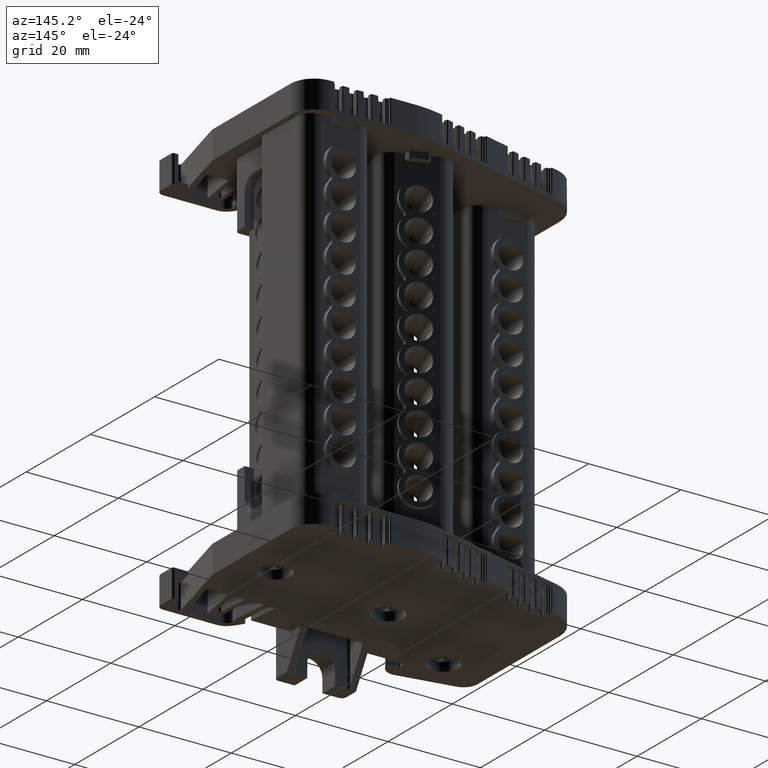
[diagram: clean part render]
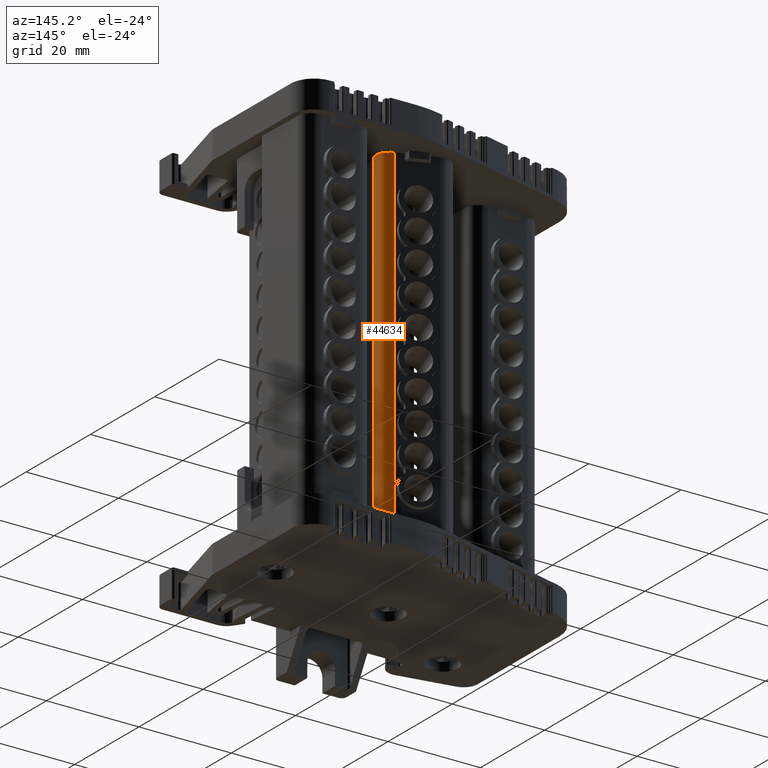
[diagram: same view with one face highlighted and labeled with its STEP entity id]
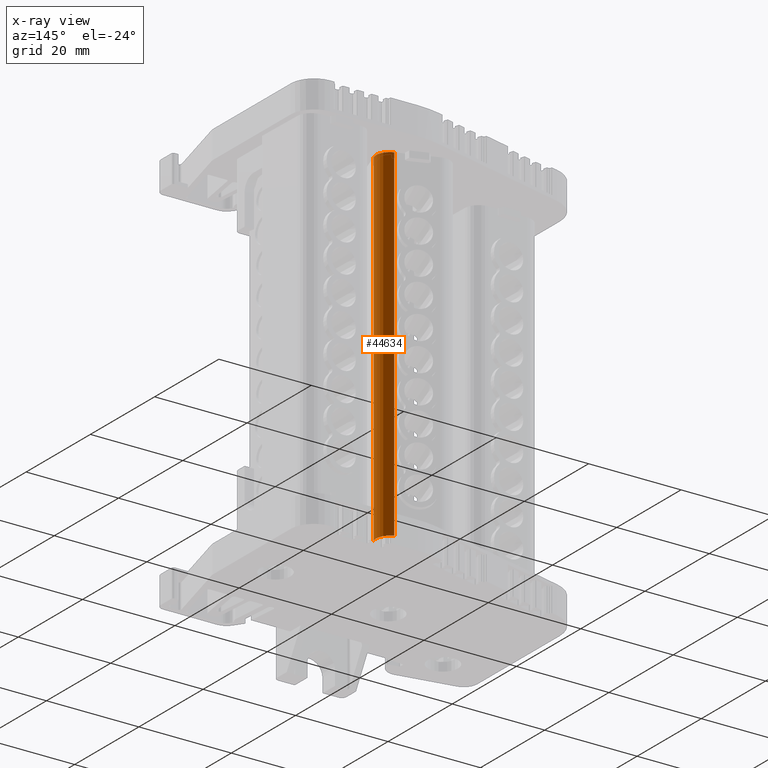
[diagram: x-ray of the same camera — body ghosted, the highlighted face saturated]
A machine part, auxiliary view. The second image highlights one B-rep face of the part: STEP entity #44634.
The next image is the same camera in x-ray: the body ghosted, the highlighted face saturated — about 0% of this face is hidden behind the body in this view.
In plain terms, the highlighted cylindrical surface (edge-blend (fillet) strip) has radius 3.0101 mm, axis along (-0, 0, -1).
Its self-contained STEP definition (entity closure, byte-faithful):
#5940 = CIRCLE ( 'NONE', #5973, 3.010083036540351000 ) ;
#5973 = AXIS2_PLACEMENT_3D ( 'NONE', #15821, #15895, #15834 ) ;
#8440 = EDGE_LOOP ( 'NONE', ( #65438, #65363, #65323, #65385 ) ) ;
#13431 = CIRCLE ( 'NONE', #13561, 3.010083036540351000 ) ;
#13561 = AXIS2_PLACEMENT_3D ( 'NONE', #16051, #16104, #16126 ) ;
#13652 = VECTOR ( 'NONE', #16430, 1000.000000000000000 ) ;
#14055 = VECTOR ( 'NONE', #16854, 1000.000000000000000 ) ;
#15821 = CARTESIAN_POINT ( 'NONE',  ( -290.4868818521011300, 223.0887043591140800, 100.3119239351455100 ) ) ;
#15834 = DIRECTION ( 'NONE',  ( 0.0000000000000000000, 1.000000000000000000, 9.220867091935734500E-015 ) ) ;
#15895 = DIRECTION ( 'NONE',  ( -8.166714072959356300E-015, 9.405853051772095400E-015, -1.000000000000000000 ) ) ;
#16051 = CARTESIAN_POINT ( 'NONE',  ( -290.4868818521017600, 223.0887043591147600, 25.71293318655235200 ) ) ;
#16104 = DIRECTION ( 'NONE',  ( 8.166714072959356300E-015, -9.405853051772095400E-015, 1.000000000000000000 ) ) ;
#16126 = DIRECTION ( 'NONE',  ( 0.0000000000000000000, 1.000000000000000000, 9.220867091935734500E-015 ) ) ;
#16430 = DIRECTION ( 'NONE',  ( 2.067656873799533900E-015, 5.680858257042341300E-015, -1.000000000000000000 ) ) ;
#16454 = LINE ( 'NONE', #16459, #13652 ) ;
#16459 = CARTESIAN_POINT ( 'NONE',  ( -289.4573756505815300, 225.9172582065593800, 176.6548958728828000 ) ) ;
#16854 = DIRECTION ( 'NONE',  ( -8.166714072959356300E-015, 9.405853051772095400E-015, -1.000000000000000000 ) ) ;
#16878 = LINE ( 'NONE', #16896, #14055 ) ;
#16896 = CARTESIAN_POINT ( 'NONE',  ( -287.6407914464475700, 222.1087200277498300, 176.6548958728827800 ) ) ;
#27792 = AXIS2_PLACEMENT_3D ( 'NONE', #73692, #73724, #73715 ) ;
#40244 = EDGE_CURVE ( 'NONE', #64753, #64739, #5940, .T. ) ;
#40353 = EDGE_CURVE ( 'NONE', #64747, #64802, #13431, .T. ) ;
#40408 = EDGE_CURVE ( 'NONE', #64753, #64802, #16454, .T. ) ;
#40481 = EDGE_CURVE ( 'NONE', #64739, #64747, #16878, .T. ) ;
#44634 = ADVANCED_FACE ( 'NONE', ( #73668 ), #73687, .T. ) ;
#64739 = VERTEX_POINT ( 'NONE', #110575 ) ;
#64747 = VERTEX_POINT ( 'NONE', #110555 ) ;
#64753 = VERTEX_POINT ( 'NONE', #110556 ) ;
#64802 = VERTEX_POINT ( 'NONE', #110672 ) ;
#65323 = ORIENTED_EDGE ( 'NONE', *, *, #40481, .T. ) ;
#65363 = ORIENTED_EDGE ( 'NONE', *, *, #40244, .T. ) ;
#65385 = ORIENTED_EDGE ( 'NONE', *, *, #40353, .T. ) ;
#65438 = ORIENTED_EDGE ( 'NONE', *, *, #40408, .F. ) ;
#73668 = FACE_OUTER_BOUND ( 'NONE', #8440, .T. ) ;
#73687 = CYLINDRICAL_SURFACE ( 'NONE', #27792, 3.010083036540351000 ) ;
#73692 = CARTESIAN_POINT ( 'NONE',  ( -290.4868818521005100, 223.0887043591133400, 176.6548958728828000 ) ) ;
#73715 = DIRECTION ( 'NONE',  ( 0.0000000000000000000, 1.000000000000000000, 9.220867091935734500E-015 ) ) ;
#73724 = DIRECTION ( 'NONE',  ( -8.166714072959356300E-015, 9.405853051772095400E-015, -1.000000000000000000 ) ) ;
#110555 = CARTESIAN_POINT ( 'NONE',  ( -287.6407914464482500, 222.1087200277508500, 25.71293318655232300 ) ) ;
#110556 = CARTESIAN_POINT ( 'NONE',  ( -289.4573756505811300, 225.9172582065597200, 100.3119239351455000 ) ) ;
#110575 = CARTESIAN_POINT ( 'NONE',  ( -287.6407914464476800, 222.1087200277501400, 100.3119239351454900 ) ) ;
#110672 = CARTESIAN_POINT ( 'NONE',  ( -289.4573756505813500, 225.9172582065602900, 25.71293318655235900 ) ) ;